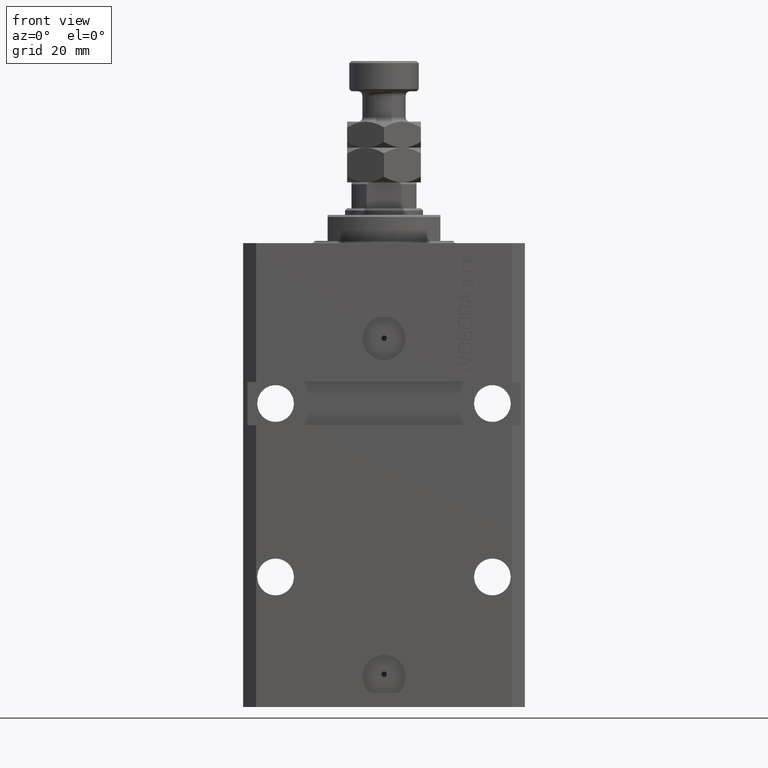
[diagram: clean part render]
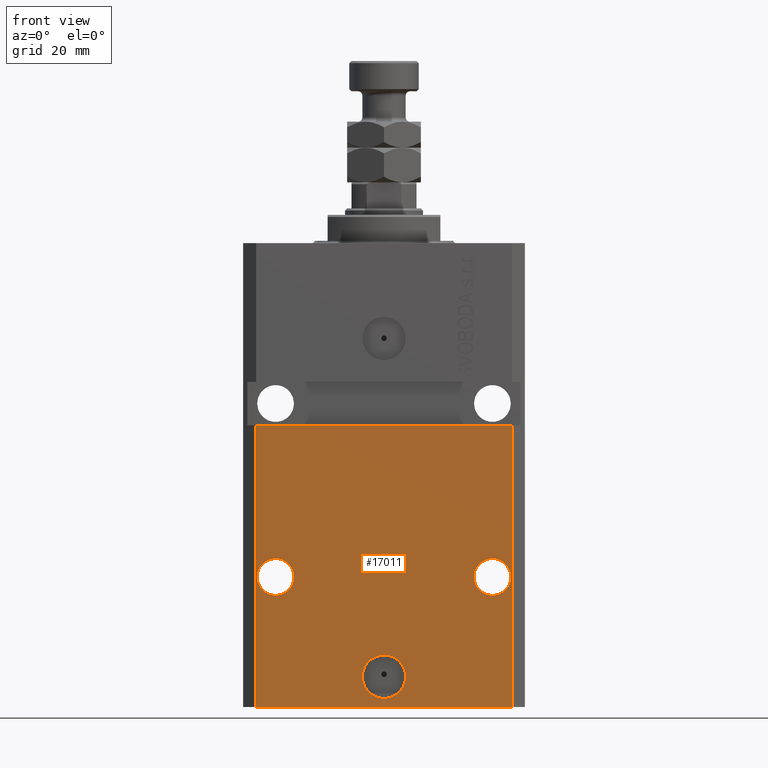
[diagram: same view with one face highlighted and labeled with its STEP entity id]
A machine part, front view. The second image highlights one B-rep face of the part: STEP entity #17011.
In plain terms, the highlighted planar face has unit normal (0, -1, 0).
Its self-contained STEP definition (entity closure, byte-faithful):
#449 = DIRECTION ( 'NONE',  ( 1.176083712526788232E-16, -1.000000000000000000, 0.000000000000000000 ) ) ;
#767 = DIRECTION ( 'NONE',  ( 1.000000000000000000, 1.176083712526788232E-16, 0.000000000000000000 ) ) ;
#979 = EDGE_CURVE ( 'NONE', #12611, #33860, #39809, .T. ) ;
#2099 = ORIENTED_EDGE ( 'NONE', *, *, #15490, .F. ) ;
#2418 = ORIENTED_EDGE ( 'NONE', *, *, #31039, .F. ) ;
#2434 = CARTESIAN_POINT ( 'NONE',  ( -29.49999999999650413, -22.49999999999949907, -107.0000000000000000 ) ) ;
#3924 = AXIS2_PLACEMENT_3D ( 'NONE', #26052, #36304, #767 ) ;
#4237 = CARTESIAN_POINT ( 'NONE',  ( -29.49999999999650413, -22.49999999999949907, -107.0000000000000000 ) ) ;
#4361 = VECTOR ( 'NONE', #16972, 1000.000000000000000 ) ;
#4790 = AXIS2_PLACEMENT_3D ( 'NONE', #30373, #25921, #43317 ) ;
#5221 = CARTESIAN_POINT ( 'NONE',  ( 20.75000000001094946, -22.49999999999949196, -76.99999999999998579 ) ) ;
#6180 = VERTEX_POINT ( 'NONE', #39638 ) ;
#6566 = EDGE_LOOP ( 'NONE', ( #22693, #17445 ) ) ;
#6837 = DIRECTION ( 'NONE',  ( 0.000000000000000000, 0.000000000000000000, 1.000000000000000000 ) ) ;
#6896 = CARTESIAN_POINT ( 'NONE',  ( 2.646188353185214061E-15, -22.49999999999949551, -99.99999999999998579 ) ) ;
#6948 = CARTESIAN_POINT ( 'NONE',  ( 5.000000000000008882, -22.49999999999949551, -99.99999999999998579 ) ) ;
#7410 = AXIS2_PLACEMENT_3D ( 'NONE', #19698, #33999, #9195 ) ;
#8904 = AXIS2_PLACEMENT_3D ( 'NONE', #29148, #43442, #32726 ) ;
#9195 = DIRECTION ( 'NONE',  ( 1.000000000000000000, 0.000000000000000000, 0.000000000000000000 ) ) ;
#9504 = CARTESIAN_POINT ( 'NONE',  ( -20.75000000002340883, -22.49999999999949907, -76.99999999999998579 ) ) ;
#10644 = CARTESIAN_POINT ( 'NONE',  ( -29.49999999999650413, -22.49999999999949907, -41.99999999999999289 ) ) ;
#10938 = DIRECTION ( 'NONE',  ( 1.000000000000000000, 0.000000000000000000, 0.000000000000000000 ) ) ;
#11126 = VERTEX_POINT ( 'NONE', #37434 ) ;
#11496 = FACE_BOUND ( 'NONE', #33405, .T. ) ;
#11702 = EDGE_CURVE ( 'NONE', #33860, #12611, #29467, .T. ) ;
#11704 = CARTESIAN_POINT ( 'NONE',  ( -29.24999999997659472, -22.49999999999949907, -76.99999999999998579 ) ) ;
#12002 = CIRCLE ( 'NONE', #7410, 5.000000000000006217 ) ;
#12213 = VERTEX_POINT ( 'NONE', #26585 ) ;
#12506 = EDGE_CURVE ( 'NONE', #31982, #12213, #30336, .T. ) ;
#12511 = AXIS2_PLACEMENT_3D ( 'NONE', #25026, #28585, #36198 ) ;
#12611 = VERTEX_POINT ( 'NONE', #9504 ) ;
#14070 = EDGE_LOOP ( 'NONE', ( #32113, #2418, #34013, #26294 ) ) ;
#14279 = DIRECTION ( 'NONE',  ( 0.000000000000000000, 0.000000000000000000, 1.000000000000000000 ) ) ;
#15129 = EDGE_CURVE ( 'NONE', #39384, #11126, #47024, .T. ) ;
#15490 = EDGE_CURVE ( 'NONE', #11126, #39384, #12002, .T. ) ;
#16972 = DIRECTION ( 'NONE',  ( 1.000000000000000000, 1.176083712526788232E-16, 0.000000000000000000 ) ) ;
#17011 = ADVANCED_FACE ( 'NONE', ( #11496, #33421, #28927, #18418 ), #21776, .T. ) ;
#17445 = ORIENTED_EDGE ( 'NONE', *, *, #11702, .F. ) ;
#18060 = AXIS2_PLACEMENT_3D ( 'NONE', #30655, #449, #10938 ) ;
#18418 = FACE_OUTER_BOUND ( 'NONE', #14070, .T. ) ;
#19698 = CARTESIAN_POINT ( 'NONE',  ( 2.646188353185214061E-15, -22.49999999999949551, -99.99999999999998579 ) ) ;
#21004 = CIRCLE ( 'NONE', #18060, 4.249999999989057642 ) ;
#21436 = DIRECTION ( 'NONE',  ( 1.176083712526788232E-16, -1.000000000000000000, 0.000000000000000000 ) ) ;
#21776 = PLANE ( 'NONE',  #3924 ) ;
#22028 = ORIENTED_EDGE ( 'NONE', *, *, #15129, .F. ) ;
#22376 = CIRCLE ( 'NONE', #12511, 4.249999999989057642 ) ;
#22693 = ORIENTED_EDGE ( 'NONE', *, *, #979, .F. ) ;
#22716 = CARTESIAN_POINT ( 'NONE',  ( -32.49999999999650413, -22.49999999999949907, -41.99999999999999289 ) ) ;
#23284 = EDGE_CURVE ( 'NONE', #6180, #12213, #36151, .T. ) ;
#24550 = VECTOR ( 'NONE', #6837, 1000.000000000000000 ) ;
#25026 = CARTESIAN_POINT ( 'NONE',  ( 25.00000000000000711, -22.49999999999949196, -76.99999999999998579 ) ) ;
#25921 = DIRECTION ( 'NONE',  ( 1.176083712526788232E-16, -1.000000000000000000, 0.000000000000000000 ) ) ;
#25972 = EDGE_CURVE ( 'NONE', #26992, #43826, #22376, .T. ) ;
#26052 = CARTESIAN_POINT ( 'NONE',  ( -29.49999999999650413, -22.49999999999949907, -107.0000000000000000 ) ) ;
#26294 = ORIENTED_EDGE ( 'NONE', *, *, #23284, .T. ) ;
#26585 = CARTESIAN_POINT ( 'NONE',  ( 29.49999999999650058, -22.49999999999949196, -41.99999999999998579 ) ) ;
#26992 = VERTEX_POINT ( 'NONE', #5221 ) ;
#28585 = DIRECTION ( 'NONE',  ( 1.176083712526788232E-16, -1.000000000000000000, 0.000000000000000000 ) ) ;
#28927 = FACE_BOUND ( 'NONE', #6566, .T. ) ;
#29148 = CARTESIAN_POINT ( 'NONE',  ( -25.00000000000000000, -22.49999999999949907, -76.99999999999998579 ) ) ;
#29467 = CIRCLE ( 'NONE', #8904, 4.249999999976592058 ) ;
#29550 = ORIENTED_EDGE ( 'NONE', *, *, #34147, .F. ) ;
#30336 = LINE ( 'NONE', #22716, #35577 ) ;
#30373 = CARTESIAN_POINT ( 'NONE',  ( -25.00000000000000000, -22.49999999999949907, -76.99999999999998579 ) ) ;
#30655 = CARTESIAN_POINT ( 'NONE',  ( 25.00000000000000711, -22.49999999999949196, -76.99999999999998579 ) ) ;
#31034 = AXIS2_PLACEMENT_3D ( 'NONE', #6896, #21436, #32409 ) ;
#31039 = EDGE_CURVE ( 'NONE', #44236, #31982, #40706, .T. ) ;
#31982 = VERTEX_POINT ( 'NONE', #10644 ) ;
#32113 = ORIENTED_EDGE ( 'NONE', *, *, #12506, .F. ) ;
#32409 = DIRECTION ( 'NONE',  ( 1.000000000000000000, 0.000000000000000000, 0.000000000000000000 ) ) ;
#32647 = ORIENTED_EDGE ( 'NONE', *, *, #25972, .F. ) ;
#32726 = DIRECTION ( 'NONE',  ( -1.000000000000000000, 0.000000000000000000, 0.000000000000000000 ) ) ;
#33405 = EDGE_LOOP ( 'NONE', ( #22028, #2099 ) ) ;
#33421 = FACE_BOUND ( 'NONE', #41364, .T. ) ;
#33860 = VERTEX_POINT ( 'NONE', #11704 ) ;
#33974 = CARTESIAN_POINT ( 'NONE',  ( 29.24999999998906475, -22.49999999999949196, -76.99999999999998579 ) ) ;
#33999 = DIRECTION ( 'NONE',  ( 1.176083712526788232E-16, -1.000000000000000000, 0.000000000000000000 ) ) ;
#34013 = ORIENTED_EDGE ( 'NONE', *, *, #34494, .T. ) ;
#34147 = EDGE_CURVE ( 'NONE', #43826, #26992, #21004, .T. ) ;
#34494 = EDGE_CURVE ( 'NONE', #44236, #6180, #42480, .T. ) ;
#35577 = VECTOR ( 'NONE', #37451, 1000.000000000000000 ) ;
#35795 = CARTESIAN_POINT ( 'NONE',  ( -29.49999999999650413, -22.49999999999949907, -107.0000000000000000 ) ) ;
#36151 = LINE ( 'NONE', #43305, #24550 ) ;
#36198 = DIRECTION ( 'NONE',  ( 1.000000000000000000, 0.000000000000000000, 0.000000000000000000 ) ) ;
#36304 = DIRECTION ( 'NONE',  ( 1.176083712526788232E-16, -1.000000000000000000, 0.000000000000000000 ) ) ;
#37434 = CARTESIAN_POINT ( 'NONE',  ( -5.000000000000003553, -22.49999999999949551, -99.99999999999998579 ) ) ;
#37451 = DIRECTION ( 'NONE',  ( 1.000000000000000000, 1.067522139062765303E-16, 1.067522139062765303E-16 ) ) ;
#39384 = VERTEX_POINT ( 'NONE', #6948 ) ;
#39638 = CARTESIAN_POINT ( 'NONE',  ( 29.49999999999650413, -22.49999999999949196, -107.0000000000000000 ) ) ;
#39809 = CIRCLE ( 'NONE', #4790, 4.249999999976592058 ) ;
#40706 = LINE ( 'NONE', #4237, #46868 ) ;
#41364 = EDGE_LOOP ( 'NONE', ( #29550, #32647 ) ) ;
#42480 = LINE ( 'NONE', #2434, #4361 ) ;
#43305 = CARTESIAN_POINT ( 'NONE',  ( 29.49999999999650413, -22.49999999999949196, -107.0000000000000000 ) ) ;
#43317 = DIRECTION ( 'NONE',  ( -1.000000000000000000, 0.000000000000000000, 0.000000000000000000 ) ) ;
#43442 = DIRECTION ( 'NONE',  ( 1.176083712526788232E-16, -1.000000000000000000, 0.000000000000000000 ) ) ;
#43826 = VERTEX_POINT ( 'NONE', #33974 ) ;
#44236 = VERTEX_POINT ( 'NONE', #35795 ) ;
#46868 = VECTOR ( 'NONE', #14279, 1000.000000000000000 ) ;
#47024 = CIRCLE ( 'NONE', #31034, 5.000000000000006217 ) ;